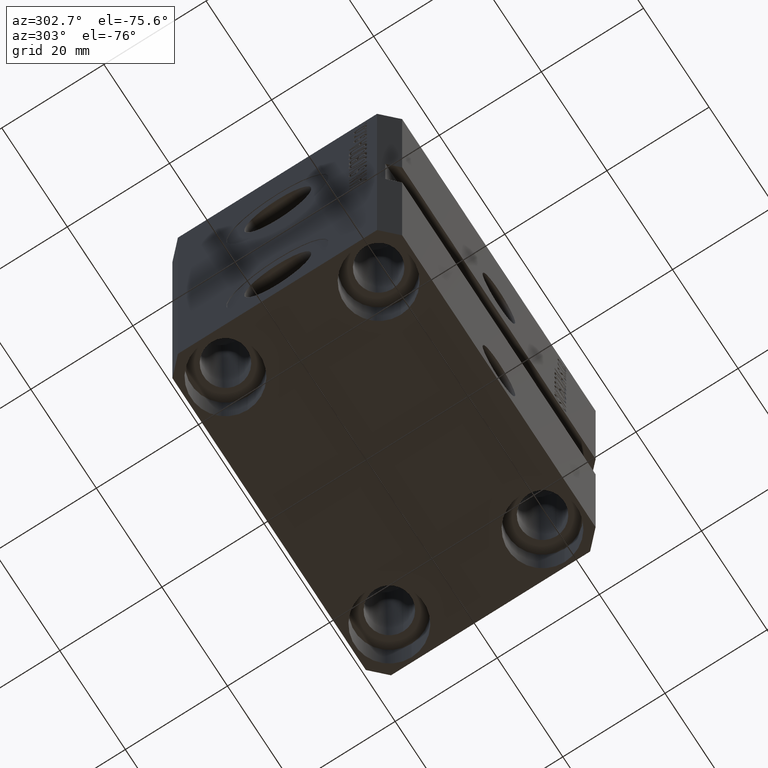
[diagram: clean part render]
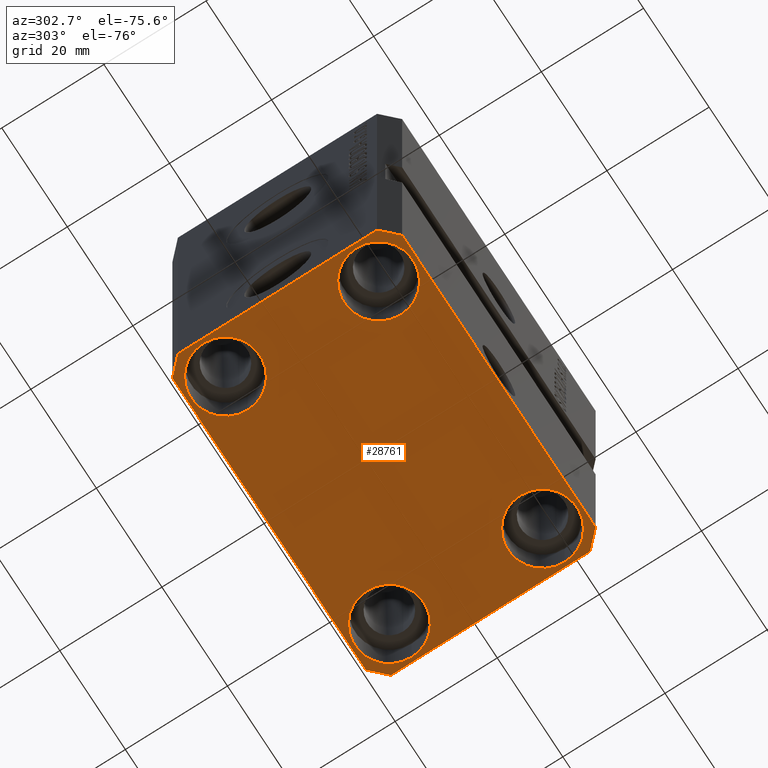
[diagram: same view with one face highlighted and labeled with its STEP entity id]
A machine part, auxiliary view. The second image highlights one B-rep face of the part: STEP entity #28761.
In plain terms, the highlighted planar face has unit normal (0, 0, 1).
Its self-contained STEP definition (entity closure, byte-faithful):
#831 = DIRECTION ( 'NONE',  ( 1.000000000000000000, 0.000000000000000000, 0.000000000000000000 ) ) ;
#910 = LINE ( 'NONE', #23456, #4188 ) ;
#1029 = CARTESIAN_POINT ( 'NONE',  ( -25.00000000000000355, -15.00000000000000000, -77.00000000000000000 ) ) ;
#1325 = VECTOR ( 'NONE', #22449, 1000.000000000000000 ) ;
#1483 = DIRECTION ( 'NONE',  ( 1.000000000000000000, 0.000000000000000000, 0.000000000000000000 ) ) ;
#3126 = ORIENTED_EDGE ( 'NONE', *, *, #23768, .T. ) ;
#3416 = CARTESIAN_POINT ( 'NONE',  ( -29.49999999999650413, -22.49999999999949907, -77.00000000000000000 ) ) ;
#3427 = CIRCLE ( 'NONE', #12038, 6.749999999977465137 ) ;
#3538 = CARTESIAN_POINT ( 'NONE',  ( -25.00000000000000355, -15.00000000000000000, -77.00000000000000000 ) ) ;
#3679 = CARTESIAN_POINT ( 'NONE',  ( 31.74999999995845101, 15.00000000000000888, -77.00000000000000000 ) ) ;
#3955 = VERTEX_POINT ( 'NONE', #35642 ) ;
#4139 = VERTEX_POINT ( 'NONE', #27268 ) ;
#4188 = VECTOR ( 'NONE', #41588, 1000.000000000000114 ) ;
#4342 = CARTESIAN_POINT ( 'NONE',  ( -31.75000000004154899, -15.00000000000000000, -77.00000000000000000 ) ) ;
#4484 = VERTEX_POINT ( 'NONE', #41142 ) ;
#5336 = EDGE_CURVE ( 'NONE', #25782, #29746, #910, .T. ) ;
#5421 = ORIENTED_EDGE ( 'NONE', *, *, #15995, .F. ) ;
#5505 = LINE ( 'NONE', #25511, #29350 ) ;
#5562 = EDGE_CURVE ( 'NONE', #11323, #20306, #39753, .T. ) ;
#6734 = CARTESIAN_POINT ( 'NONE',  ( -25.00000000000000355, 15.00000000000000000, -77.00000000000000000 ) ) ;
#6864 = VERTEX_POINT ( 'NONE', #3679 ) ;
#7058 = FACE_BOUND ( 'NONE', #13931, .T. ) ;
#7201 = VECTOR ( 'NONE', #13520, 1000.000000000000000 ) ;
#8079 = CARTESIAN_POINT ( 'NONE',  ( 29.49999999999650413, -22.49999999999949196, -77.00000000000000000 ) ) ;
#8330 = ORIENTED_EDGE ( 'NONE', *, *, #14921, .F. ) ;
#9266 = CARTESIAN_POINT ( 'NONE',  ( 18.25000000004154543, 15.00000000000000888, -77.00000000000000000 ) ) ;
#9429 = VERTEX_POINT ( 'NONE', #4342 ) ;
#10220 = PLANE ( 'NONE',  #39864 ) ;
#11081 = CARTESIAN_POINT ( 'NONE',  ( 0.000000000000000000, 0.000000000000000000, -77.00000000000000000 ) ) ;
#11173 = AXIS2_PLACEMENT_3D ( 'NONE', #18118, #32264, #1483 ) ;
#11206 = CIRCLE ( 'NONE', #34190, 6.749999999977465137 ) ;
#11296 = EDGE_CURVE ( 'NONE', #29746, #11323, #16687, .T. ) ;
#11323 = VERTEX_POINT ( 'NONE', #44087 ) ;
#11353 = DIRECTION ( 'NONE',  ( 1.000000000000000000, 0.000000000000000000, 0.000000000000000000 ) ) ;
#12038 = AXIS2_PLACEMENT_3D ( 'NONE', #14886, #12184, #25902 ) ;
#12184 = DIRECTION ( 'NONE',  ( -0.000000000000000000, -0.000000000000000000, 1.000000000000000000 ) ) ;
#12258 = AXIS2_PLACEMENT_3D ( 'NONE', #1029, #14724, #11353 ) ;
#12375 = EDGE_CURVE ( 'NONE', #41152, #44220, #5505, .T. ) ;
#13324 = VERTEX_POINT ( 'NONE', #25564 ) ;
#13439 = CARTESIAN_POINT ( 'NONE',  ( 32.49999999999651124, -19.49999999999949196, -77.00000000000000000 ) ) ;
#13520 = DIRECTION ( 'NONE',  ( 1.000000000000000000, 1.176083712526788232E-16, 0.000000000000000000 ) ) ;
#13807 = FACE_OUTER_BOUND ( 'NONE', #37344, .T. ) ;
#13920 = DIRECTION ( 'NONE',  ( 1.000000000000000000, 0.000000000000000000, 0.000000000000000000 ) ) ;
#13931 = EDGE_LOOP ( 'NONE', ( #25360, #44229 ) ) ;
#14051 = DIRECTION ( 'NONE',  ( 1.000000000000000000, 0.000000000000000000, 0.000000000000000000 ) ) ;
#14135 = EDGE_LOOP ( 'NONE', ( #26750, #34892 ) ) ;
#14192 = AXIS2_PLACEMENT_3D ( 'NONE', #25942, #39643, #25710 ) ;
#14201 = EDGE_CURVE ( 'NONE', #28095, #33793, #30427, .T. ) ;
#14362 = DIRECTION ( 'NONE',  ( -0.000000000000000000, -0.000000000000000000, 1.000000000000000000 ) ) ;
#14518 = ORIENTED_EDGE ( 'NONE', *, *, #12375, .F. ) ;
#14539 = EDGE_CURVE ( 'NONE', #20306, #41152, #44225, .T. ) ;
#14724 = DIRECTION ( 'NONE',  ( -0.000000000000000000, -0.000000000000000000, 1.000000000000000000 ) ) ;
#14886 = CARTESIAN_POINT ( 'NONE',  ( 25.00000000000000355, -15.00000000000000000, -77.00000000000000000 ) ) ;
#14890 = CARTESIAN_POINT ( 'NONE',  ( -29.49999999999650413, 22.49999999999949907, -77.00000000000000000 ) ) ;
#14921 = EDGE_CURVE ( 'NONE', #33793, #25782, #40317, .T. ) ;
#15995 = EDGE_CURVE ( 'NONE', #44220, #28095, #31530, .T. ) ;
#16601 = EDGE_CURVE ( 'NONE', #9429, #13324, #18748, .T. ) ;
#16687 = LINE ( 'NONE', #3416, #7201 ) ;
#17081 = DIRECTION ( 'NONE',  ( -0.000000000000000000, -0.000000000000000000, 1.000000000000000000 ) ) ;
#17452 = CARTESIAN_POINT ( 'NONE',  ( 29.49999999999707967, 22.49999999999951328, -77.00000000000000000 ) ) ;
#17759 = CARTESIAN_POINT ( 'NONE',  ( -32.49999999999650413, 19.49999999999949907, -77.00000000000000000 ) ) ;
#17946 = VECTOR ( 'NONE', #31468, 1000.000000000000000 ) ;
#18118 = CARTESIAN_POINT ( 'NONE',  ( -25.00000000000000355, 15.00000000000000000, -77.00000000000000000 ) ) ;
#18748 = CIRCLE ( 'NONE', #12258, 6.750000000041541881 ) ;
#18916 = AXIS2_PLACEMENT_3D ( 'NONE', #6734, #17081, #13920 ) ;
#19393 = VECTOR ( 'NONE', #40871, 1000.000000000000000 ) ;
#19731 = ORIENTED_EDGE ( 'NONE', *, *, #14539, .F. ) ;
#20135 = EDGE_CURVE ( 'NONE', #4484, #37485, #39728, .T. ) ;
#20306 = VERTEX_POINT ( 'NONE', #22421 ) ;
#20336 = CIRCLE ( 'NONE', #38995, 6.749999999958452790 ) ;
#21195 = CARTESIAN_POINT ( 'NONE',  ( 29.49999999999707967, 22.49999999999951328, -77.00000000000000000 ) ) ;
#22236 = CARTESIAN_POINT ( 'NONE',  ( -18.24999999997747224, 15.00000000000000000, -77.00000000000000000 ) ) ;
#22421 = CARTESIAN_POINT ( 'NONE',  ( 32.49999999999651124, -19.49999999999949196, -77.00000000000000000 ) ) ;
#22449 = DIRECTION ( 'NONE',  ( 0.7071067811865483499, 0.7071067811865466846, 0.000000000000000000 ) ) ;
#23456 = CARTESIAN_POINT ( 'NONE',  ( -32.49999999999650413, -19.49999999999949907, -77.00000000000000000 ) ) ;
#23768 = EDGE_CURVE ( 'NONE', #39252, #6864, #20336, .T. ) ;
#24798 = DIRECTION ( 'NONE',  ( 1.000000000000000000, 0.000000000000000000, -0.000000000000000000 ) ) ;
#24943 = CIRCLE ( 'NONE', #14192, 6.749999999958452790 ) ;
#25360 = ORIENTED_EDGE ( 'NONE', *, *, #16601, .T. ) ;
#25511 = CARTESIAN_POINT ( 'NONE',  ( 32.49999999999702993, 19.49999999999945999, -77.00000000000000000 ) ) ;
#25564 = CARTESIAN_POINT ( 'NONE',  ( -18.24999999995845812, -15.00000000000000000, -77.00000000000000000 ) ) ;
#25667 = ORIENTED_EDGE ( 'NONE', *, *, #5562, .F. ) ;
#25710 = DIRECTION ( 'NONE',  ( 1.000000000000000000, 0.000000000000000000, 0.000000000000000000 ) ) ;
#25782 = VERTEX_POINT ( 'NONE', #36208 ) ;
#25902 = DIRECTION ( 'NONE',  ( 1.000000000000000000, 0.000000000000000000, 0.000000000000000000 ) ) ;
#25942 = CARTESIAN_POINT ( 'NONE',  ( 24.99999999999999645, 15.00000000000000888, -77.00000000000000000 ) ) ;
#26750 = ORIENTED_EDGE ( 'NONE', *, *, #38493, .T. ) ;
#27268 = CARTESIAN_POINT ( 'NONE',  ( 18.25000000002253842, -15.00000000000000000, -77.00000000000000000 ) ) ;
#27287 = CARTESIAN_POINT ( 'NONE',  ( -29.49999999999650413, 22.49999999999949907, -77.00000000000000000 ) ) ;
#27380 = EDGE_LOOP ( 'NONE', ( #3126, #32814 ) ) ;
#27970 = ORIENTED_EDGE ( 'NONE', *, *, #20135, .T. ) ;
#28075 = DIRECTION ( 'NONE',  ( 1.000000000000000000, 0.000000000000000000, 0.000000000000000000 ) ) ;
#28095 = VERTEX_POINT ( 'NONE', #14890 ) ;
#28761 = ADVANCED_FACE ( 'NONE', ( #7058, #44366, #34699, #41010, #13807 ), #10220, .F. ) ;
#29350 = VECTOR ( 'NONE', #39216, 1000.000000000000000 ) ;
#29452 = VECTOR ( 'NONE', #42306, 1000.000000000000000 ) ;
#29746 = VERTEX_POINT ( 'NONE', #36253 ) ;
#30427 = LINE ( 'NONE', #27287, #30873 ) ;
#30492 = EDGE_CURVE ( 'NONE', #37485, #4484, #40638, .T. ) ;
#30696 = DIRECTION ( 'NONE',  ( -0.000000000000000000, -0.000000000000000000, 1.000000000000000000 ) ) ;
#30859 = EDGE_CURVE ( 'NONE', #13324, #9429, #37050, .T. ) ;
#30873 = VECTOR ( 'NONE', #44130, 1000.000000000000114 ) ;
#31135 = CARTESIAN_POINT ( 'NONE',  ( 24.99999999999999645, 15.00000000000000888, -77.00000000000000000 ) ) ;
#31442 = EDGE_CURVE ( 'NONE', #3955, #4139, #11206, .T. ) ;
#31468 = DIRECTION ( 'NONE',  ( 0.000000000000000000, -1.000000000000000000, 0.000000000000000000 ) ) ;
#31530 = LINE ( 'NONE', #21195, #29452 ) ;
#31667 = CARTESIAN_POINT ( 'NONE',  ( 25.00000000000000355, -15.00000000000000000, -77.00000000000000000 ) ) ;
#32264 = DIRECTION ( 'NONE',  ( -0.000000000000000000, -0.000000000000000000, 1.000000000000000000 ) ) ;
#32787 = ORIENTED_EDGE ( 'NONE', *, *, #11296, .F. ) ;
#32814 = ORIENTED_EDGE ( 'NONE', *, *, #38989, .T. ) ;
#33793 = VERTEX_POINT ( 'NONE', #41332 ) ;
#34162 = AXIS2_PLACEMENT_3D ( 'NONE', #3538, #34755, #831 ) ;
#34190 = AXIS2_PLACEMENT_3D ( 'NONE', #31667, #14362, #28075 ) ;
#34699 = FACE_BOUND ( 'NONE', #27380, .T. ) ;
#34755 = DIRECTION ( 'NONE',  ( -0.000000000000000000, -0.000000000000000000, 1.000000000000000000 ) ) ;
#34892 = ORIENTED_EDGE ( 'NONE', *, *, #31442, .T. ) ;
#35628 = CARTESIAN_POINT ( 'NONE',  ( 32.49999999999702993, 19.49999999999945999, -77.00000000000000000 ) ) ;
#35642 = CARTESIAN_POINT ( 'NONE',  ( 31.74999999997746869, -15.00000000000000000, -77.00000000000000000 ) ) ;
#35992 = ORIENTED_EDGE ( 'NONE', *, *, #14201, .F. ) ;
#36208 = CARTESIAN_POINT ( 'NONE',  ( -32.49999999999650413, -19.49999999999949907, -77.00000000000000000 ) ) ;
#36253 = CARTESIAN_POINT ( 'NONE',  ( -29.49999999999650413, -22.49999999999949907, -77.00000000000000000 ) ) ;
#36890 = ORIENTED_EDGE ( 'NONE', *, *, #5336, .F. ) ;
#37050 = CIRCLE ( 'NONE', #34162, 6.750000000041541881 ) ;
#37344 = EDGE_LOOP ( 'NONE', ( #5421, #14518, #19731, #25667, #32787, #36890, #8330, #35992 ) ) ;
#37485 = VERTEX_POINT ( 'NONE', #22236 ) ;
#38493 = EDGE_CURVE ( 'NONE', #4139, #3955, #3427, .T. ) ;
#38989 = EDGE_CURVE ( 'NONE', #6864, #39252, #24943, .T. ) ;
#38995 = AXIS2_PLACEMENT_3D ( 'NONE', #31135, #30696, #14051 ) ;
#39216 = DIRECTION ( 'NONE',  ( -0.7071067811865352493, 0.7071067811865597852, 0.000000000000000000 ) ) ;
#39252 = VERTEX_POINT ( 'NONE', #9266 ) ;
#39643 = DIRECTION ( 'NONE',  ( -0.000000000000000000, -0.000000000000000000, 1.000000000000000000 ) ) ;
#39728 = CIRCLE ( 'NONE', #18916, 6.750000000022533087 ) ;
#39753 = LINE ( 'NONE', #8079, #1325 ) ;
#39864 = AXIS2_PLACEMENT_3D ( 'NONE', #11081, #41667, #24798 ) ;
#40317 = LINE ( 'NONE', #17759, #17946 ) ;
#40343 = EDGE_LOOP ( 'NONE', ( #27970, #44452 ) ) ;
#40638 = CIRCLE ( 'NONE', #11173, 6.750000000022533087 ) ;
#40871 = DIRECTION ( 'NONE',  ( 1.334402673828349134E-14, 1.000000000000000000, 0.000000000000000000 ) ) ;
#41010 = FACE_BOUND ( 'NONE', #40343, .T. ) ;
#41142 = CARTESIAN_POINT ( 'NONE',  ( -31.75000000002253842, 15.00000000000000000, -77.00000000000000000 ) ) ;
#41152 = VERTEX_POINT ( 'NONE', #35628 ) ;
#41332 = CARTESIAN_POINT ( 'NONE',  ( -32.49999999999650413, 19.49999999999949907, -77.00000000000000000 ) ) ;
#41588 = DIRECTION ( 'NONE',  ( 0.7071067811865474617, -0.7071067811865474617, 0.000000000000000000 ) ) ;
#41667 = DIRECTION ( 'NONE',  ( 0.000000000000000000, 0.000000000000000000, 1.000000000000000000 ) ) ;
#42306 = DIRECTION ( 'NONE',  ( -1.000000000000000000, -2.352167425053553784E-16, 0.000000000000000000 ) ) ;
#44087 = CARTESIAN_POINT ( 'NONE',  ( 29.49999999999650413, -22.49999999999949196, -77.00000000000000000 ) ) ;
#44130 = DIRECTION ( 'NONE',  ( -0.7071067811865474617, -0.7071067811865474617, 0.000000000000000000 ) ) ;
#44220 = VERTEX_POINT ( 'NONE', #17452 ) ;
#44225 = LINE ( 'NONE', #13439, #19393 ) ;
#44229 = ORIENTED_EDGE ( 'NONE', *, *, #30859, .T. ) ;
#44366 = FACE_BOUND ( 'NONE', #14135, .T. ) ;
#44452 = ORIENTED_EDGE ( 'NONE', *, *, #30492, .T. ) ;